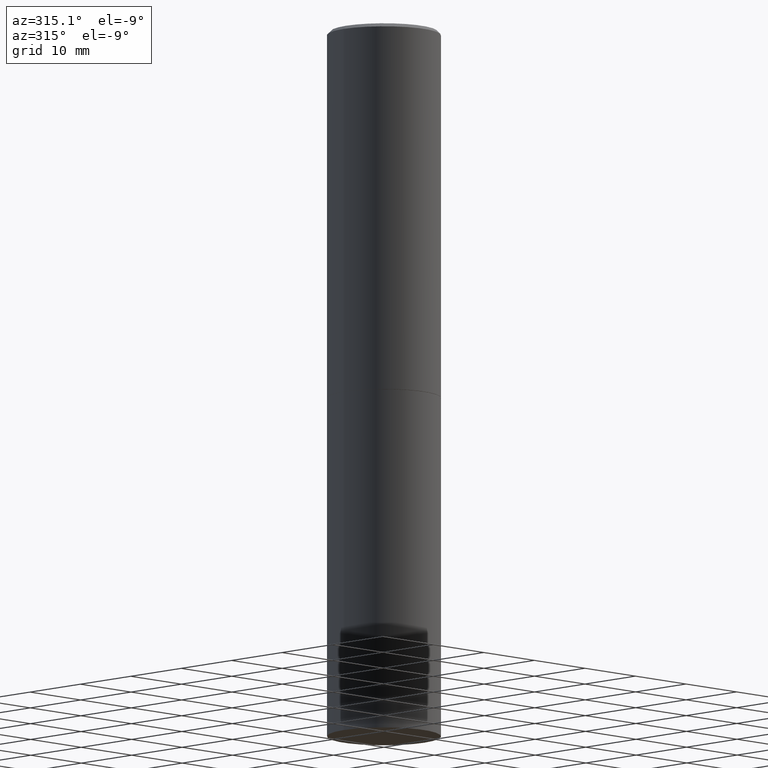
[diagram: clean part render]
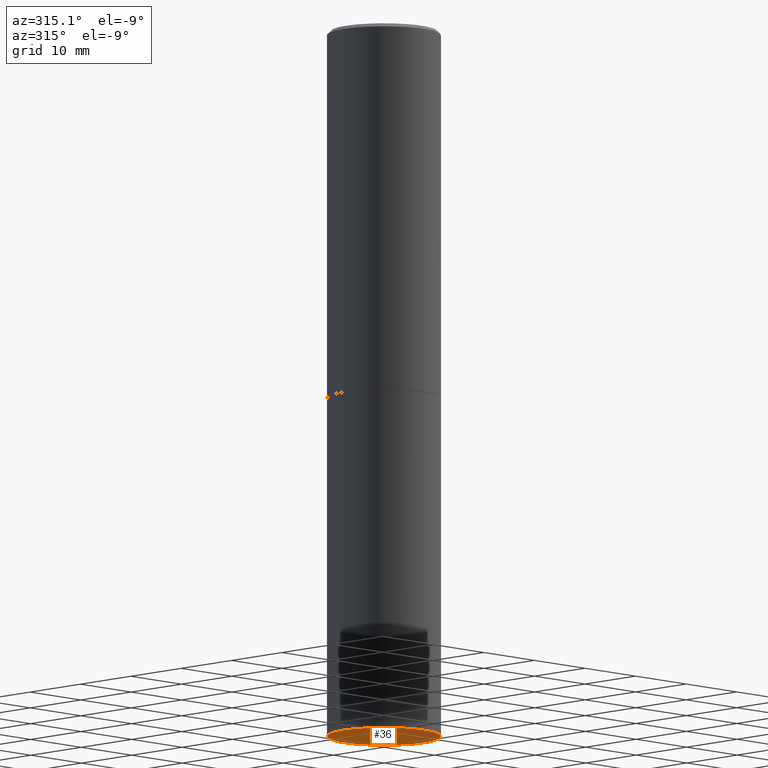
[diagram: same view with one face highlighted and labeled with its STEP entity id]
A machine part, auxiliary view. The second image highlights one B-rep face of the part: STEP entity #36.
In plain terms, the highlighted planar face has unit normal (0, -0, -1).
Its self-contained STEP definition (entity closure, byte-faithful):
#11 = CARTESIAN_POINT ( 'NONE',  ( 2.199284095337385323E-15, 0.3149499999999862965, -3.937000000000001165 ) ) ;
#17 = VERTEX_POINT ( 'NONE', #304 ) ;
#25 = CIRCLE ( 'NONE', #31, 0.3149500000000000077 ) ;
#31 = AXIS2_PLACEMENT_3D ( 'NONE', #103, #215, #76 ) ;
#36 = ADVANCED_FACE ( 'NONE', ( #138 ), #335, .T. ) ;
#42 = EDGE_LOOP ( 'NONE', ( #96, #173 ) ) ;
#76 = DIRECTION ( 'NONE',  ( 1.000000000000000000, -6.982962677686269866E-15, 0.000000000000000000 ) ) ;
#96 = ORIENTED_EDGE ( 'NONE', *, *, #320, .F. ) ;
#103 = CARTESIAN_POINT ( 'NONE',  ( 9.627810689950883669E-29, -1.374596203102546341E-14, -3.937000000000000277 ) ) ;
#110 = DIRECTION ( 'NONE',  ( 2.438088387897960049E-29, -3.491481338843145188E-15, -1.000000000000000000 ) ) ;
#121 = AXIS2_PLACEMENT_3D ( 'NONE', #11, #110, #355 ) ;
#126 = DIRECTION ( 'NONE',  ( 1.000000000000000000, -6.982962677686269866E-15, 0.000000000000000000 ) ) ;
#138 = FACE_OUTER_BOUND ( 'NONE', #42, .T. ) ;
#150 = CARTESIAN_POINT ( 'NONE',  ( 0.3149500000000000077, -1.594524612636275486E-14, -3.937000000000000277 ) ) ;
#169 = AXIS2_PLACEMENT_3D ( 'NONE', #183, #295, #126 ) ;
#170 = VERTEX_POINT ( 'NONE', #150 ) ;
#173 = ORIENTED_EDGE ( 'NONE', *, *, #273, .F. ) ;
#183 = CARTESIAN_POINT ( 'NONE',  ( 9.627810689950883669E-29, -1.374596203102546341E-14, -3.937000000000000277 ) ) ;
#215 = DIRECTION ( 'NONE',  ( -2.445468806185136597E-29, 3.491481338843145583E-15, 1.000000000000000000 ) ) ;
#250 = CIRCLE ( 'NONE', #169, 0.3149500000000000077 ) ;
#273 = EDGE_CURVE ( 'NONE', #17, #170, #25, .T. ) ;
#295 = DIRECTION ( 'NONE',  ( -2.445468806185136597E-29, 3.491481338843145583E-15, 1.000000000000000000 ) ) ;
#304 = CARTESIAN_POINT ( 'NONE',  ( -0.3149500000000000077, -8.209006967676138246E-15, -3.937000000000000277 ) ) ;
#320 = EDGE_CURVE ( 'NONE', #170, #17, #250, .T. ) ;
#335 = PLANE ( 'NONE',  #121 ) ;
#355 = DIRECTION ( 'NONE',  ( -1.000000000000000000, 6.982962677686265922E-15, -4.876176775795935793E-29 ) ) ;